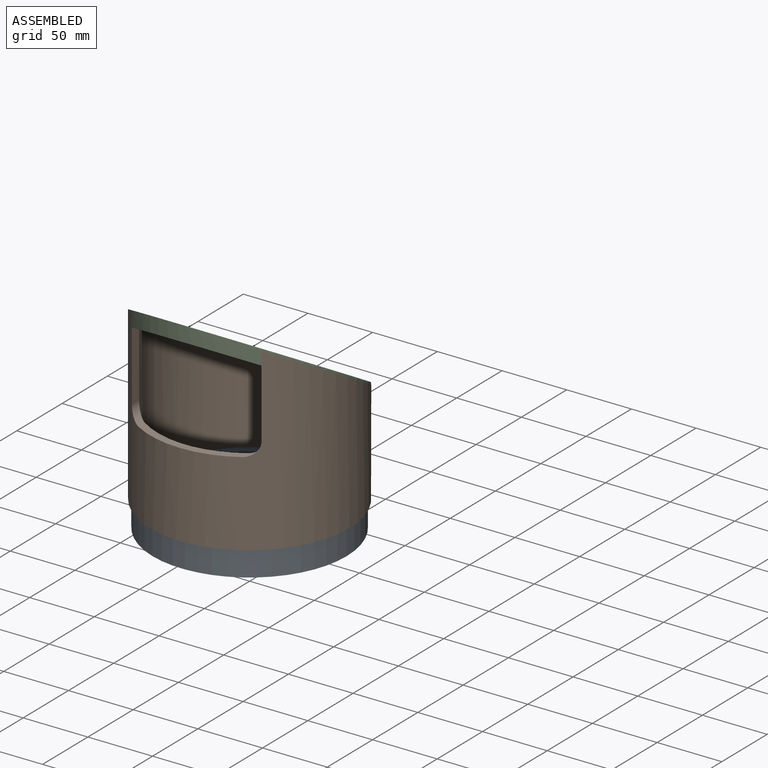
[diagram: assembled view]
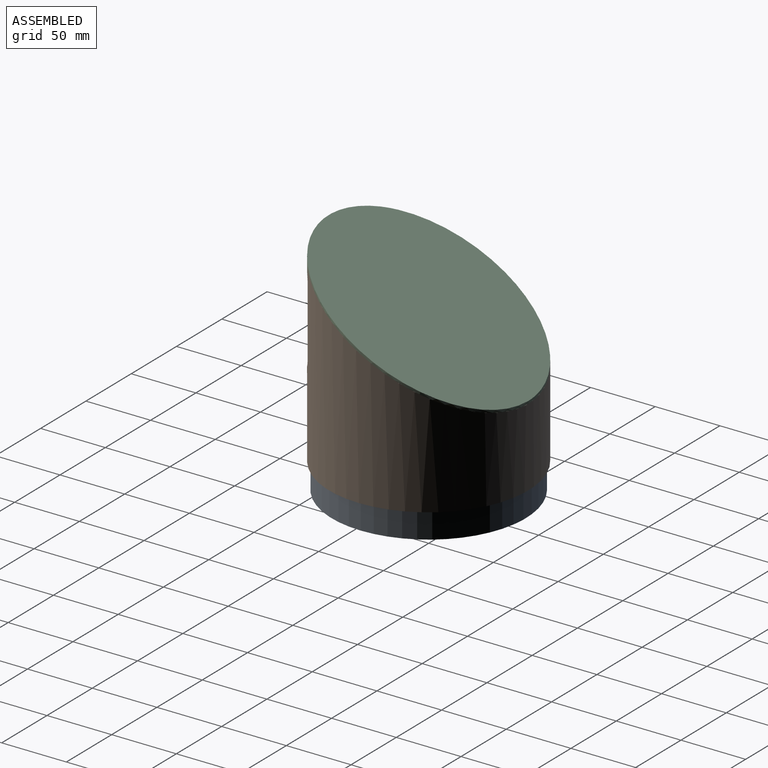
[diagram: assembled view, second angle]
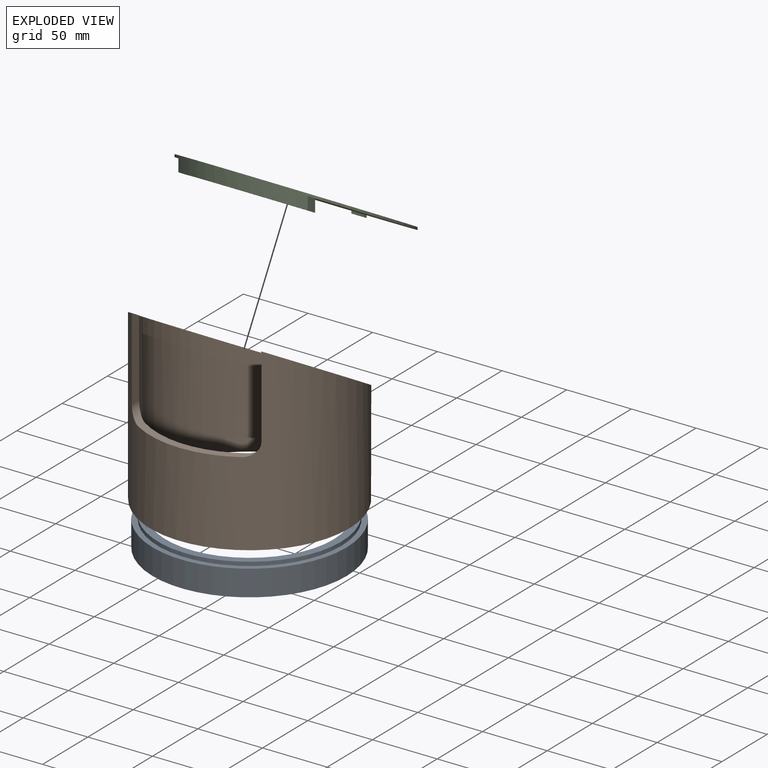
[diagram: exploded view]
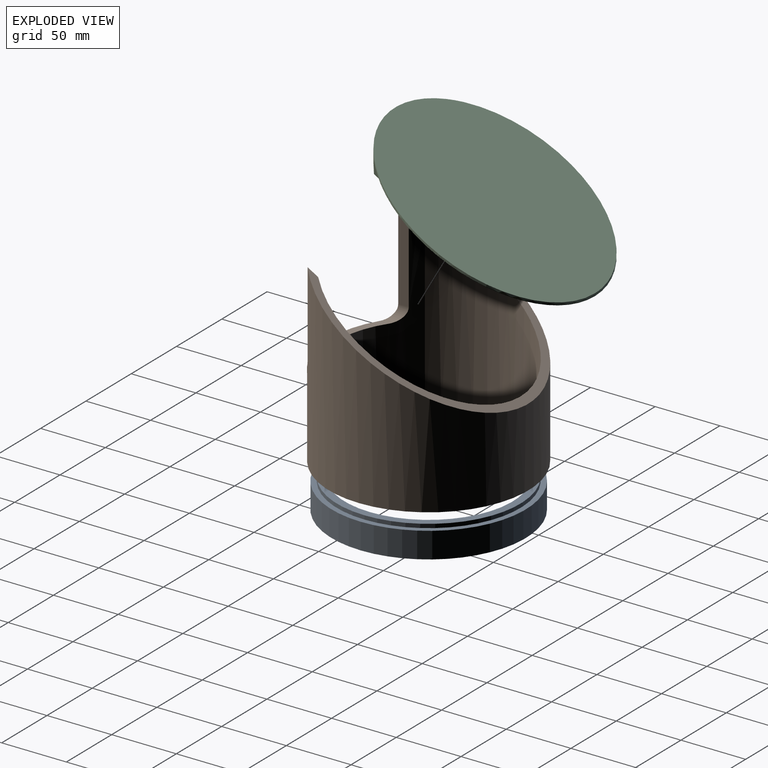
[diagram: exploded view, second angle]
ASSEMBLY  parts=3 mates=2
PART A: 6 faces, bbox 149.9x149.9x23 mm
  f0: cylinder r=65mm len=130mm, axis (0,0,-1), area 9393.4mm2, adj f2,f5
  f1: cylinder r=74.95mm len=149.9mm, axis (0,0,-1), area 9418.5mm2, adj f2,f3
  f2: plane 149.9x149.9mm, normal (0,0,-1), area 4374.7mm2, adj f0,f1
  f3: plane 149.9x149.9mm, normal (0,0,1), area 1855.7mm2, adj f1,f4
  f4: cylinder r=70.9mm len=141.8mm, axis (0,0,-1), area 1336.4mm2, adj f3,f5
  f5: plane 141.8x141.8mm, normal (0,0,1), area 2519mm2, adj f0,f4
PART B: 9 faces, bbox 154x154x138.8 mm
  f0: cylinder r=71mm len=142mm, axis (0,0,-1), area 38362.2mm2, adj f2,f3,f4,f5,f6,f7,f8
  f1: cylinder r=77mm len=154mm, axis (0,0,-1), area 42055.3mm2, adj f2,f3,f4,f5,f6,f7,f8
  f2: plane 154x135.56mm, normal (0,0.5,0.87), area 2460.4mm2, adj f0,f1,f5,f6
  f3: plane 154x154mm, normal (0,0,-1), area 2789.7mm2, adj f0,f1
  f4: plane 80x18.34mm, normal (0,0,1), area 507.2mm2, adj f0,f1,f7,f8
  f5: plane 63.81x8.15mm, normal (-1,0,0), area 500.8mm2, adj f0,f1,f2,f7
  f6: plane 63.81x8.15mm, normal (1,0,0), area 500.8mm2, adj f0,f1,f2,f8
  f7: cylinder r=10mm len=15.39mm, axis (0,1,0), area 121.5mm2, adj f0,f1,f4,f5
  f8: cylinder r=10mm len=15.39mm, axis (0,-1,0), area 121.5mm2, adj f0,f1,f4,f6
PART C: 12 faces, bbox 154x154x91.5 mm
  f0: plane 154x148.46mm, normal (0,-0.5,-0.87), area 20754.6mm2, adj f2,f4,f5,f6,f8,f9,f10,f11
  f1: plane 154x154mm, normal (0,0.5,0.87), area 21508mm2, adj f2
  f2: cylinder r=77mm len=154mm, axis (0,0,-1), area 2055.6mm2, adj f0,f1,f3,f4,f6
  f3: plane 100x26.58mm, normal (0,-0.5,-0.87), area 723.4mm2, adj f2,f4,f5,f6
  f4: plane 14.7x8.13mm, normal (-1,0,0), area 81.3mm2, adj f0,f2,f3,f5
  f5: bspline ~100x22.14mm, area 1113.9mm2, adj f0,f3,f4,f6
  f6: plane 14.7x8.13mm, normal (1,0,0), area 81.3mm2, adj f0,f2,f3,f5
  f7: plane 10x2.79mm, normal (0,-0.5,-0.87), area 30mm2, adj f8,f9,f10,f11
  f8: plane 3.51x2.61mm, normal (-1,0,0), area 5.2mm2, adj f0,f7,f9,f11
  f9: bspline ~10x2.1mm, area 20mm2, adj f0,f7,f8,f10
  f10: plane 3.51x2.61mm, normal (1,0,0), area 5.2mm2, adj f0,f7,f9,f11
  f11: bspline ~10x2.11mm, area 20mm2, adj f0,f7,f8,f10
PLACE A at identity fixed
PLACE B t=(0,0,20)mm
PLACE C t=(0,0,-78)mm
MATE fastened A.f4 <-> B.f0  axis (0,0,1) through (0,0,20)mm
MATE fastened C.f0 <-> B.f2  axis (0,-0.5,-0.87) through (0,0,125)mm
